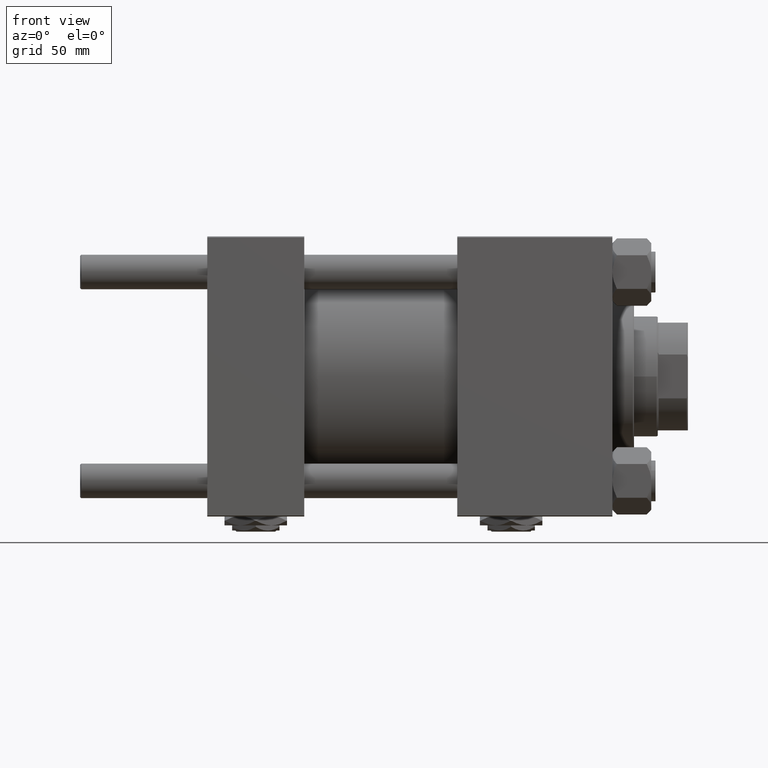
[diagram: clean part render]
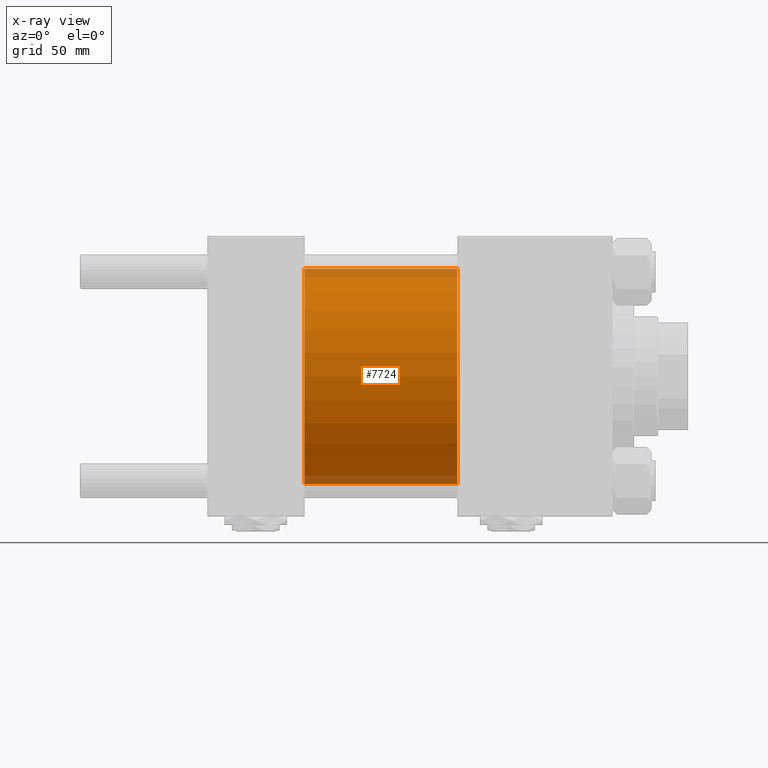
[diagram: x-ray — body ghosted, one internal face saturated and labeled with its STEP entity id]
A machine part, front view, then the same camera in x-ray: the body is ghosted and one INTERNAL B-rep face — a face not visible from any outside direction — is saturated and labeled: STEP entity #7724.
In plain terms, the highlighted cylindrical surface (partial cylindrical patch) has radius 50 mm, axis along (-1, -0, -0).
Its self-contained STEP definition (entity closure, byte-faithful):
#4488 = CARTESIAN_POINT ( 'NONE',  ( 45.00000000000000000, 0.000000000000000000, 50.00000000000000000 ) ) ;
#6098 = EDGE_CURVE ( 'NONE', #18421, #31479, #43284, .T. ) ;
#6160 = VERTEX_POINT ( 'NONE', #50821 ) ;
#7133 = DIRECTION ( 'NONE',  ( 1.000000000000000000, 0.000000000000000000, 0.000000000000000000 ) ) ;
#7724 = ADVANCED_FACE ( 'NONE', ( #44240 ), #20420, .F. ) ;
#7973 = DIRECTION ( 'NONE',  ( 0.000000000000000000, 0.000000000000000000, 1.000000000000000000 ) ) ;
#10350 = AXIS2_PLACEMENT_3D ( 'NONE', #51420, #39759, #7973 ) ;
#11893 = CIRCLE ( 'NONE', #33882, 50.00000000000000000 ) ;
#14548 = AXIS2_PLACEMENT_3D ( 'NONE', #18536, #7133, #35712 ) ;
#16261 = ORIENTED_EDGE ( 'NONE', *, *, #19925, .F. ) ;
#18057 = LINE ( 'NONE', #47436, #37417 ) ;
#18421 = VERTEX_POINT ( 'NONE', #4488 ) ;
#18536 = CARTESIAN_POINT ( 'NONE',  ( 45.00000000000000000, 0.000000000000000000, 0.000000000000000000 ) ) ;
#19925 = EDGE_CURVE ( 'NONE', #51163, #18421, #22980, .T. ) ;
#20420 = CYLINDRICAL_SURFACE ( 'NONE', #10350, 50.00000000000000000 ) ;
#21871 = EDGE_LOOP ( 'NONE', ( #21999, #26762, #39844, #16261 ) ) ;
#21999 = ORIENTED_EDGE ( 'NONE', *, *, #49531, .T. ) ;
#22980 = LINE ( 'NONE', #26673, #37712 ) ;
#24329 = CARTESIAN_POINT ( 'NONE',  ( 115.9999999999999858, 0.000000000000000000, 0.000000000000000000 ) ) ;
#24349 = EDGE_CURVE ( 'NONE', #6160, #31479, #18057, .T. ) ;
#26673 = CARTESIAN_POINT ( 'NONE',  ( 115.9999999999999858, 0.000000000000000000, 50.00000000000000000 ) ) ;
#26762 = ORIENTED_EDGE ( 'NONE', *, *, #24349, .T. ) ;
#27320 = DIRECTION ( 'NONE',  ( -1.000000000000000000, -0.000000000000000000, -0.000000000000000000 ) ) ;
#31479 = VERTEX_POINT ( 'NONE', #38086 ) ;
#32272 = DIRECTION ( 'NONE',  ( 0.000000000000000000, 0.000000000000000000, -1.000000000000000000 ) ) ;
#33882 = AXIS2_PLACEMENT_3D ( 'NONE', #24329, #47643, #32272 ) ;
#34142 = CARTESIAN_POINT ( 'NONE',  ( 115.9999999999999858, 0.000000000000000000, 50.00000000000000000 ) ) ;
#35712 = DIRECTION ( 'NONE',  ( 0.000000000000000000, 0.000000000000000000, -1.000000000000000000 ) ) ;
#37417 = VECTOR ( 'NONE', #27320, 1000.000000000000000 ) ;
#37712 = VECTOR ( 'NONE', #51289, 1000.000000000000000 ) ;
#38086 = CARTESIAN_POINT ( 'NONE',  ( 45.00000000000000000, 6.123233995736766085E-15, -50.00000000000000000 ) ) ;
#39759 = DIRECTION ( 'NONE',  ( -1.000000000000000000, -0.000000000000000000, -0.000000000000000000 ) ) ;
#39844 = ORIENTED_EDGE ( 'NONE', *, *, #6098, .F. ) ;
#43284 = CIRCLE ( 'NONE', #14548, 50.00000000000000000 ) ;
#44240 = FACE_OUTER_BOUND ( 'NONE', #21871, .T. ) ;
#47436 = CARTESIAN_POINT ( 'NONE',  ( 115.9999999999999858, 6.123233995736766085E-15, -50.00000000000000000 ) ) ;
#47643 = DIRECTION ( 'NONE',  ( 1.000000000000000000, 0.000000000000000000, 0.000000000000000000 ) ) ;
#49531 = EDGE_CURVE ( 'NONE', #51163, #6160, #11893, .T. ) ;
#50821 = CARTESIAN_POINT ( 'NONE',  ( 115.9999999999999858, 6.123233995736766085E-15, -50.00000000000000000 ) ) ;
#51163 = VERTEX_POINT ( 'NONE', #34142 ) ;
#51289 = DIRECTION ( 'NONE',  ( -1.000000000000000000, -0.000000000000000000, -0.000000000000000000 ) ) ;
#51420 = CARTESIAN_POINT ( 'NONE',  ( 115.9999999999999858, 0.000000000000000000, 0.000000000000000000 ) ) ;